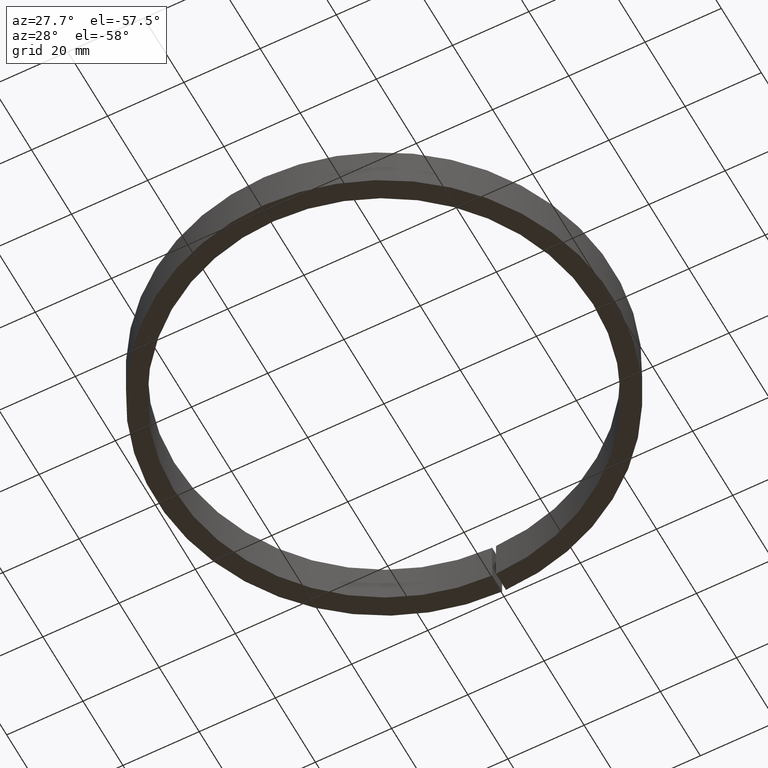
[diagram: clean part render]
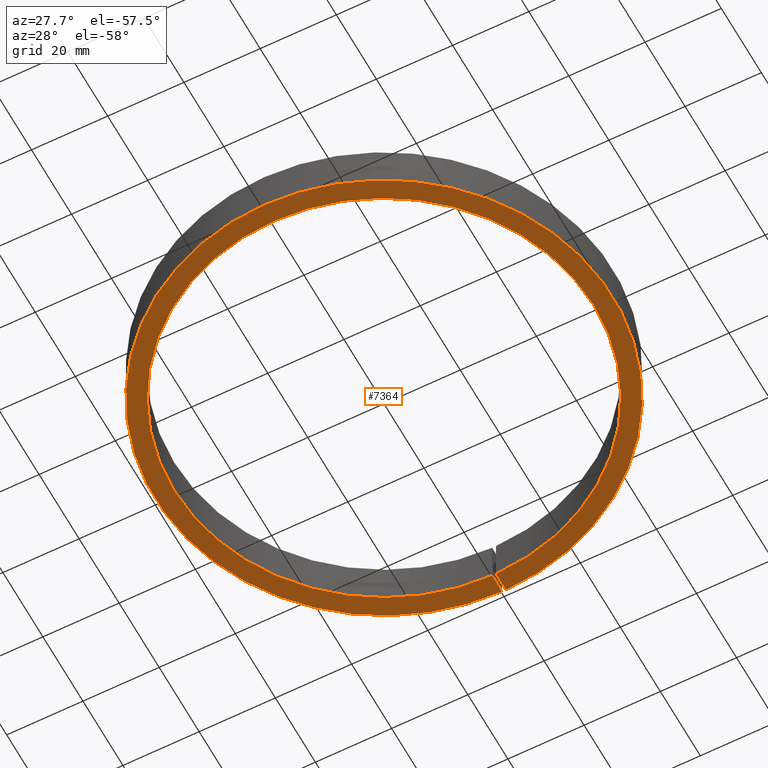
[diagram: same view with one face highlighted and labeled with its STEP entity id]
A machine part, auxiliary view. The second image highlights one B-rep face of the part: STEP entity #7364.
In plain terms, the highlighted planar face has unit normal (0, 0, 1).
Its self-contained STEP definition (entity closure, byte-faithful):
#145 = CARTESIAN_POINT ( 'NONE',  ( 0.000000000000000000, 0.000000000000000000, -6.000000000000002665 ) ) ;
#462 = CARTESIAN_POINT ( 'NONE',  ( 0.000000000000000000, -55.00000000000000000, -6.000000000000003553 ) ) ;
#515 = DIRECTION ( 'NONE',  ( 1.000000000000000000, 0.000000000000000000, -0.000000000000000000 ) ) ;
#581 = AXIS2_PLACEMENT_3D ( 'NONE', #10681, #5039, #11620 ) ;
#743 = CARTESIAN_POINT ( 'NONE',  ( 0.5000000000000000000, 54.99772722576815909, -6.000000000000003553 ) ) ;
#1103 = VERTEX_POINT ( 'NONE', #6857 ) ;
#1515 = CIRCLE ( 'NONE', #581, 60.00000000000000000 ) ;
#3003 = CIRCLE ( 'NONE', #4110, 55.00000000000000000 ) ;
#3246 = PLANE ( 'NONE',  #4355 ) ;
#3877 = ORIENTED_EDGE ( 'NONE', *, *, #6374, .T. ) ;
#4032 = VERTEX_POINT ( 'NONE', #743 ) ;
#4110 = AXIS2_PLACEMENT_3D ( 'NONE', #145, #10375, #11471 ) ;
#4139 = ORIENTED_EDGE ( 'NONE', *, *, #8556, .F. ) ;
#4153 = DIRECTION ( 'NONE',  ( 0.000000000000000000, 0.000000000000000000, 1.000000000000000000 ) ) ;
#4355 = AXIS2_PLACEMENT_3D ( 'NONE', #462, #4153, #515 ) ;
#4735 = LINE ( 'NONE', #11139, #11036 ) ;
#5039 = DIRECTION ( 'NONE',  ( -0.000000000000000000, -0.000000000000000000, -1.000000000000000000 ) ) ;
#5794 = EDGE_CURVE ( 'NONE', #4032, #12185, #3003, .T. ) ;
#5894 = CARTESIAN_POINT ( 'NONE',  ( -0.5000000000000000000, 54.99772722576815909, -6.000000000000003553 ) ) ;
#6374 = EDGE_CURVE ( 'NONE', #1103, #8450, #1515, .T. ) ;
#6857 = CARTESIAN_POINT ( 'NONE',  ( 0.5000000000000000000, 59.99791663049642665, -6.000000000000003553 ) ) ;
#7364 = ADVANCED_FACE ( 'NONE', ( #11356 ), #3246, .F. ) ;
#7768 = CARTESIAN_POINT ( 'NONE',  ( 0.5000000000000000000, 0.000000000000000000, -6.000000000000003553 ) ) ;
#8132 = ORIENTED_EDGE ( 'NONE', *, *, #5794, .F. ) ;
#8222 = VECTOR ( 'NONE', #9687, 1000.000000000000000 ) ;
#8450 = VERTEX_POINT ( 'NONE', #11875 ) ;
#8556 = EDGE_CURVE ( 'NONE', #12185, #8450, #4735, .T. ) ;
#9282 = DIRECTION ( 'NONE',  ( 0.000000000000000000, 1.000000000000000000, -0.000000000000000000 ) ) ;
#9607 = EDGE_CURVE ( 'NONE', #4032, #1103, #10725, .T. ) ;
#9687 = DIRECTION ( 'NONE',  ( 0.000000000000000000, 1.000000000000000000, -0.000000000000000000 ) ) ;
#10375 = DIRECTION ( 'NONE',  ( -0.000000000000000000, -0.000000000000000000, -1.000000000000000000 ) ) ;
#10656 = ORIENTED_EDGE ( 'NONE', *, *, #9607, .T. ) ;
#10681 = CARTESIAN_POINT ( 'NONE',  ( 0.000000000000000000, 0.000000000000000000, -6.000000000000003553 ) ) ;
#10725 = LINE ( 'NONE', #7768, #8222 ) ;
#11036 = VECTOR ( 'NONE', #9282, 1000.000000000000000 ) ;
#11065 = EDGE_LOOP ( 'NONE', ( #8132, #10656, #3877, #4139 ) ) ;
#11139 = CARTESIAN_POINT ( 'NONE',  ( -0.5000000000000000000, 0.000000000000000000, -6.000000000000003553 ) ) ;
#11356 = FACE_OUTER_BOUND ( 'NONE', #11065, .T. ) ;
#11471 = DIRECTION ( 'NONE',  ( -1.000000000000000000, 0.000000000000000000, 0.000000000000000000 ) ) ;
#11620 = DIRECTION ( 'NONE',  ( -1.000000000000000000, 0.000000000000000000, 0.000000000000000000 ) ) ;
#11875 = CARTESIAN_POINT ( 'NONE',  ( -0.5000000000000000000, 59.99791663049643375, -6.000000000000003553 ) ) ;
#12185 = VERTEX_POINT ( 'NONE', #5894 ) ;